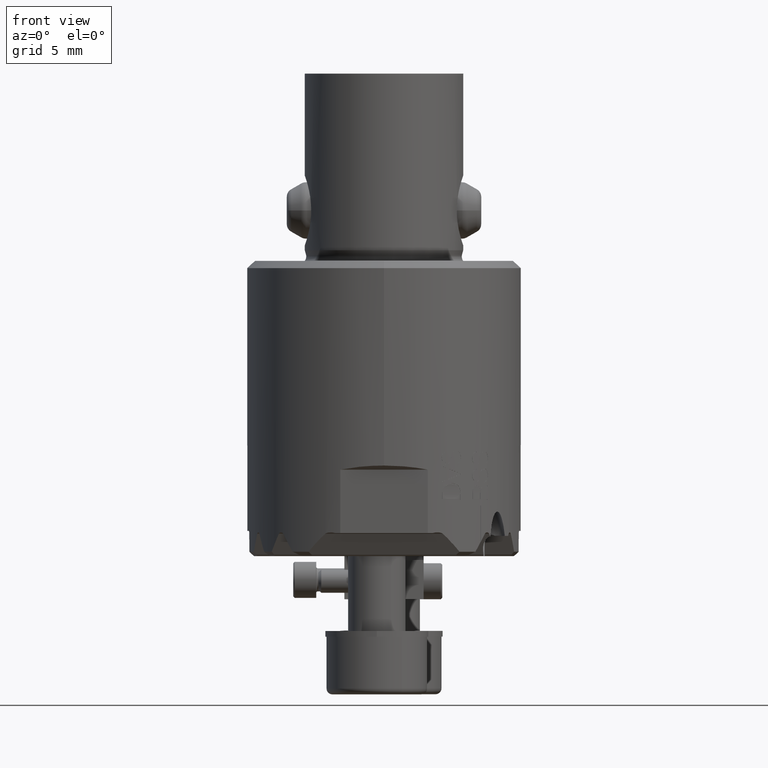
[diagram: clean part render]
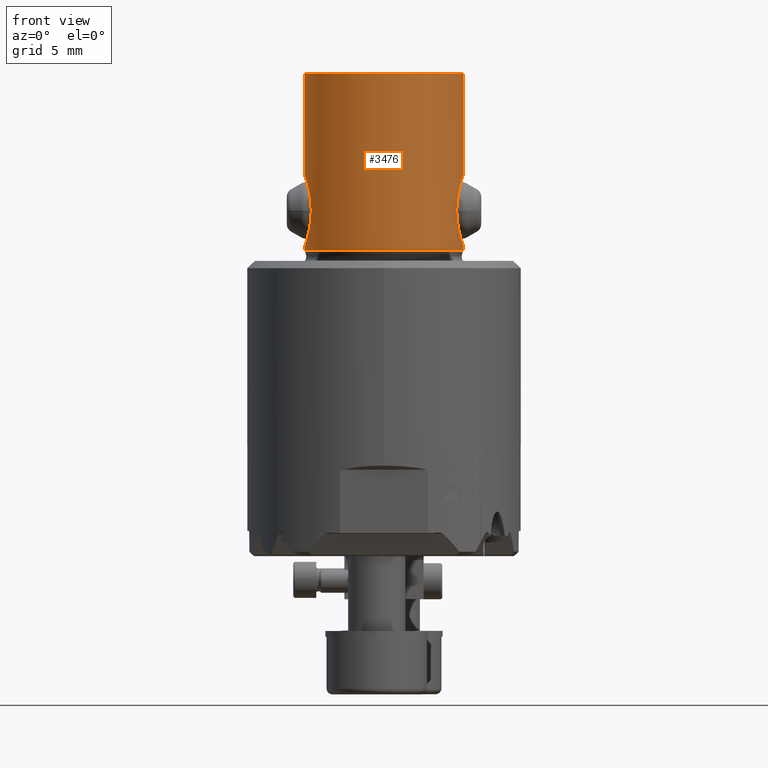
[diagram: same view with one face highlighted and labeled with its STEP entity id]
A machine part, front view. The second image highlights one B-rep face of the part: STEP entity #3476.
In plain terms, the highlighted cylindrical surface (partial cylindrical patch) has radius 5.5 mm, axis along (0, 0, 1).
Its self-contained STEP definition (entity closure, byte-faithful):
#3428=EDGE_CURVE('NONE',#6424,#5322,#10071,.F.);
#3468=VERTEX_POINT('NONE',#10115);
#3476=ADVANCED_FACE('NONE',(#10125),#10126,.T.);
#3516=EDGE_CURVE('NONE',#3468,#5322,#10171,.T.);
#3688=VERTEX_POINT('NONE',#10354);
#5132=EDGE_CURVE('NONE',#8668,#3468,#11953,.T.);
#5322=VERTEX_POINT('NONE',#12164);
#5894=VERTEX_POINT('NONE',#12803);
#5998=VERTEX_POINT('NONE',#12925);
#6054=EDGE_CURVE('NONE',#5998,#8668,#12988,.T.);
#6424=VERTEX_POINT('NONE',#13397);
#7584=EDGE_CURVE('NONE',#3688,#5894,#14683,.T.);
#8178=EDGE_CURVE('NONE',#3688,#6424,#15321,.T.);
#8658=EDGE_CURVE('NONE',#5998,#8738,#15852,.T.);
#8668=VERTEX_POINT('NONE',#15864);
#8738=VERTEX_POINT('NONE',#15941);
#9420=EDGE_CURVE('NONE',#8738,#5894,#16706,.T.);
#10071=CIRCLE('',#17415,5.5);
#10115=CARTESIAN_POINT('',(5.50000000000001,-7.14299198483482E-015,5.92487113059642));
#10125=FACE_OUTER_BOUND('',#17536,.T.);
#10126=CYLINDRICAL_SURFACE('',#17537,5.5);
#10171=LINE('',#17623,#17624);
#10354=CARTESIAN_POINT('',(-5.50000000000003,1.70311616208648E-014,5.92487113059657));
#11953=B_SPLINE_CURVE_WITH_KNOTS('',3,(#26240,#26241,#26242,#26243,#26244,#26245,#26246,#26247,#26248,#26249,#26250,#26251,#26252,#26253,#26254,#26255,#26256,#26257,#26258,#26259,#26260,#26261,#26262,#26263,#26264,#26265,#26266,#26267,#26268,#26269,#26270,#26271,#26272,#26273,#26274,#26275,#26276,#26277,#26278,#26279,#26280,#26281,#26282,#26283,#26284,#26285,#26286),.UNSPECIFIED.,.F.,.F.,(4,2,2,2,2,2,2,2,2,2,2,3,2,2,2,2,2,2,2,2,2,2,4),(-4.87261984377668,-4.41583832098615,-3.95905679819562,-3.50227527540509,-3.04549375261456,-2.58871222982403,-2.1319307070335,-1.67514918424297,-1.25636188818222,-0.837574592121483,-0.418787296060742,0.0,0.431466070727297,0.862932141454594,1.29439821218189,1.72586428290919,2.16962801802804,2.6133917531469,3.05715548826575,3.50091922338461,3.94468295850346,4.38844669362232,4.83221042874117),.UNSPECIFIED.);
#12164=CARTESIAN_POINT('',(5.50000000000003,-7.14301131085603E-015,13.0));
#12803=CARTESIAN_POINT('',(-5.5,7.81656698934652E-015,1.07512886940359));
#12925=CARTESIAN_POINT('',(5.5,-7.14301131085606E-015,0.739031329550557));
#12988=LINE('',#30768,#30769);
#13397=CARTESIAN_POINT('',(-5.49999999999997,7.81656705038712E-015,13.0));
#14683=B_SPLINE_CURVE_WITH_KNOTS('',3,(#36778,#36779,#36780,#36781,#36782,#36783,#36784,#36785,#36786,#36787,#36788,#36789,#36790,#36791,#36792,#36793,#36794,#36795,#36796,#36797,#36798,#36799,#36800,#36801,#36802,#36803,#36804,#36805,#36806,#36807,#36808,#36809,#36810,#36811,#36812,#36813,#36814,#36815,#36816,#36817,#36818,#36819,#36820,#36821,#36822,#36823),.UNSPECIFIED.,.F.,.F.,(4,2,2,2,2,2,2,2,2,2,2,2,2,2,2,2,2,2,2,2,2,2,4),(2.16962801802804,2.6133917531469,3.05715548826575,3.50091922338461,3.94468295850346,4.38844669362232,4.83221042874117,5.27597416386002,5.70744023458732,6.13890630531462,6.57037237604191,7.00183844676921,7.42062574282995,7.83941303889069,8.25820033495143,8.67698763101217,9.1337691538027,9.59055067659324,10.0473321993838,10.5041137221743,10.9478774572932,11.391641192412,11.8354049275309),.UNSPECIFIED.);
#15321=LINE('',#38807,#38808);
#15852=CIRCLE('',#40818,5.5);
#15864=CARTESIAN_POINT('',(5.5,-7.14316573613187E-015,1.07512886940356));
#15941=CARTESIAN_POINT('',(-5.5,7.8165670503871E-015,0.739031329550583));
#16706=LINE('',#44502,#44503);
#17415=AXIS2_PLACEMENT_3D('',#45923,#45924,#45925);
#17536=EDGE_LOOP('',(#46001,#46002,#46003,#46004,#46005,#46006,#46007,#46008));
#17537=AXIS2_PLACEMENT_3D('',#46009,#46010,#46011);
#17623=CARTESIAN_POINT('',(5.50000000000003,-7.14301131085603E-015,13.0));
#17624=VECTOR('',#46074,1000.0);
#26240=CARTESIAN_POINT('',(5.34553224206159,1.29432802993676,1.55573698844352));
#26241=CARTESIAN_POINT('',(5.37460026169694,1.17427806424542,1.45565661254593));
#26242=CARTESIAN_POINT('',(5.40226756328689,1.04201071475581,1.36728195080594));
#26243=CARTESIAN_POINT('',(5.44895428315725,0.761037936627461,1.22326953335619));
#26244=CARTESIAN_POINT('',(5.46797738072453,0.612003939838679,1.16748850647717));
#26245=CARTESIAN_POINT('',(5.49351395114518,0.30761977742026,1.09340419541638));
#26246=CARTESIAN_POINT('',(5.5,0.152260507596838,1.07512886940356));
#26247=CARTESIAN_POINT('',(5.5,-0.152260507596851,1.07512886940356));
#26248=CARTESIAN_POINT('',(5.49351395114518,-0.307619777420273,1.09340419541638));
#26249=CARTESIAN_POINT('',(5.46797738072453,-0.612003939838691,1.16748850647717));
#26250=CARTESIAN_POINT('',(5.44895428315725,-0.761037936627473,1.22326953335619));
#26251=CARTESIAN_POINT('',(5.40226756328689,-1.04201071475582,1.36728195080594));
#26252=CARTESIAN_POINT('',(5.37460026169694,-1.17427806424544,1.45565661254593));
#26253=CARTESIAN_POINT('',(5.31646422242624,-1.41437799562811,1.65581736434111));
#26254=CARTESIAN_POINT('',(5.2860570189835,-1.52221633862693,1.76761441124392));
#26255=CARTESIAN_POINT('',(5.23105795786008,-1.70119157488657,1.99149619286507));
#26256=CARTESIAN_POINT('',(5.20432090428265,-1.78058630314661,2.11019303384377));
#26257=CARTESIAN_POINT('',(5.15468449055798,-1.9195498064665,2.36465726576365));
#26258=CARTESIAN_POINT('',(5.13182744926574,-1.97913416666208,2.50042439844721));
#26259=CARTESIAN_POINT('',(5.09406766980252,-2.07439133761427,2.78094539839874));
#26260=CARTESIAN_POINT('',(5.07917655996017,-2.11012030075314,2.92587767783913));
#26261=CARTESIAN_POINT('',(5.05951607510312,-2.1568354819699,3.21560583215867));
#26262=CARTESIAN_POINT('',(5.05475950762827,-2.16781141247149,3.36040423464641));
#26263=CARTESIAN_POINT('',(5.05475950762827,-2.16781141247149,3.49999999999999));
#26264=CARTESIAN_POINT('',(5.05475950762827,-2.16781141247149,3.64382202357576));
#26265=CARTESIAN_POINT('',(5.05981097811349,-2.15616165072349,3.79288699580881));
#26266=CARTESIAN_POINT('',(5.08061095778048,-2.10668281770845,4.09074831455941));
#26267=CARTESIAN_POINT('',(5.09634427563651,-2.06886604197187,4.23954776403061));
#26268=CARTESIAN_POINT('',(5.1360873280236,-1.96813079682075,4.52699139067209));
#26269=CARTESIAN_POINT('',(5.16008387450618,-1.90515072959765,4.66582723372041));
#26270=CARTESIAN_POINT('',(5.21195645157068,-1.75828747436267,4.92532903375663));
#26271=CARTESIAN_POINT('',(5.23978642478512,-1.67438677204274,5.04599428284546));
#26272=CARTESIAN_POINT('',(5.29499785124052,-1.49078739604701,5.26589676647201));
#26273=CARTESIAN_POINT('',(5.32443988401013,-1.38389125270576,5.37254352282095));
#26274=CARTESIAN_POINT('',(5.38044925284361,-1.14698775816601,5.56332496319647));
#26275=CARTESIAN_POINT('',(5.40696010206478,-1.01697367267777,5.64746786390138));
#26276=CARTESIAN_POINT('',(5.45155613660193,-0.741612434003718,5.78443222449123));
#26277=CARTESIAN_POINT('',(5.46964487315285,-0.595953439758043,5.83738426796736));
#26278=CARTESIAN_POINT('',(5.49387910117327,-0.299111956946089,5.90761685869199));
#26279=CARTESIAN_POINT('',(5.50000000000001,-0.147921245039626,5.92487113059642));
#26280=CARTESIAN_POINT('',(5.50000000000001,0.147921245039611,5.92487113059642));
#26281=CARTESIAN_POINT('',(5.49387910117327,0.299111956946074,5.90761685869199));
#26282=CARTESIAN_POINT('',(5.46964487315285,0.595953439758028,5.83738426796736));
#26283=CARTESIAN_POINT('',(5.45155613660193,0.741612434003704,5.78443222449123));
#26284=CARTESIAN_POINT('',(5.40696010206478,1.01697367267776,5.64746786390138));
#26285=CARTESIAN_POINT('',(5.38044925284361,1.146987758166,5.56332496319647));
#26286=CARTESIAN_POINT('',(5.35244456842687,1.26543950543588,5.46793424300871));
#30768=CARTESIAN_POINT('',(5.50000000000003,-7.14301131085603E-015,13.0));
#30769=VECTOR('',#49017,1000.0);
#36778=CARTESIAN_POINT('',(-5.35244456842685,1.26543950543589,5.46793424300874));
#36779=CARTESIAN_POINT('',(-5.38044925284358,1.14698775816601,5.5633249631965));
#36780=CARTESIAN_POINT('',(-5.40696010206476,1.01697367267777,5.6474678639014));
#36781=CARTESIAN_POINT('',(-5.45155613660191,0.741612434003717,5.78443222449125));
#36782=CARTESIAN_POINT('',(-5.46964487315282,0.595953439758041,5.83738426796739));
#36783=CARTESIAN_POINT('',(-5.49387910117324,0.299111956946088,5.90761685869201));
#36784=CARTESIAN_POINT('',(-5.49999999999999,0.147921245039625,5.92487113059645));
#36785=CARTESIAN_POINT('',(-5.49999999999999,-0.147921245039611,5.92487113059645));
#36786=CARTESIAN_POINT('',(-5.49387910117324,-0.299111956946074,5.90761685869201));
#36787=CARTESIAN_POINT('',(-5.46964487315282,-0.595953439758027,5.83738426796739));
#36788=CARTESIAN_POINT('',(-5.45155613660191,-0.741612434003703,5.78443222449125));
#36789=CARTESIAN_POINT('',(-5.40696010206476,-1.01697367267776,5.6474678639014));
#36790=CARTESIAN_POINT('',(-5.38044925284358,-1.146987758166,5.5633249631965));
#36791=CARTESIAN_POINT('',(-5.32443988401011,-1.38389125270575,5.37254352282098));
#36792=CARTESIAN_POINT('',(-5.2949978512405,-1.49078739604699,5.26589676647203));
#36793=CARTESIAN_POINT('',(-5.2397864247851,-1.67438677204273,5.04599428284548));
#36794=CARTESIAN_POINT('',(-5.21195645157066,-1.75828747436266,4.92532903375665));
#36795=CARTESIAN_POINT('',(-5.16008387450616,-1.90515072959763,4.66582723372043));
#36796=CARTESIAN_POINT('',(-5.13608732802359,-1.96813079682074,4.52699139067212));
#36797=CARTESIAN_POINT('',(-5.0963442756365,-2.06886604197186,4.23954776403063));
#36798=CARTESIAN_POINT('',(-5.08061095778047,-2.10668281770843,4.09074831455943));
#36799=CARTESIAN_POINT('',(-5.05981097811348,-2.15616165072348,3.79288699580884));
#36800=CARTESIAN_POINT('',(-5.05475950762827,-2.16781141247148,3.64382202357578));
#36801=CARTESIAN_POINT('',(-5.05475950762827,-2.16781141247148,3.36040423464644));
#36802=CARTESIAN_POINT('',(-5.05951607510312,-2.15683548196989,3.2156058321587));
#36803=CARTESIAN_POINT('',(-5.07917655996016,-2.11012030075312,2.92587767783915));
#36804=CARTESIAN_POINT('',(-5.09406766980252,-2.07439133761426,2.78094539839876));
#36805=CARTESIAN_POINT('',(-5.13182744926574,-1.97913416666207,2.50042439844723));
#36806=CARTESIAN_POINT('',(-5.15468449055798,-1.91954980646649,2.36465726576368));
#36807=CARTESIAN_POINT('',(-5.20432090428265,-1.78058630314659,2.1101930338438));
#36808=CARTESIAN_POINT('',(-5.23105795786008,-1.70119157488655,1.9914961928651));
#36809=CARTESIAN_POINT('',(-5.2860570189835,-1.52221633862691,1.76761441124395));
#36810=CARTESIAN_POINT('',(-5.31646422242624,-1.4143779956281,1.65581736434114));
#36811=CARTESIAN_POINT('',(-5.37460026169694,-1.17427806424542,1.45565661254596));
#36812=CARTESIAN_POINT('',(-5.40226756328689,-1.04201071475581,1.36728195080597));
#36813=CARTESIAN_POINT('',(-5.44895428315725,-0.761037936627457,1.22326953335622));
#36814=CARTESIAN_POINT('',(-5.46797738072453,-0.612003939838676,1.1674885064772));
#36815=CARTESIAN_POINT('',(-5.49351395114518,-0.307619777420259,1.09340419541641));
#36816=CARTESIAN_POINT('',(-5.5,-0.152260507596837,1.07512886940359));
#36817=CARTESIAN_POINT('',(-5.5,0.147921245039625,1.07512886940359));
#36818=CARTESIAN_POINT('',(-5.49387910117325,0.299111956946089,1.09238314130802));
#36819=CARTESIAN_POINT('',(-5.46964487315283,0.595953439758042,1.16261573203265));
#36820=CARTESIAN_POINT('',(-5.45155613660192,0.741612434003718,1.21556777550878));
#36821=CARTESIAN_POINT('',(-5.40696010206477,1.01697367267777,1.35253213609863));
#36822=CARTESIAN_POINT('',(-5.38044925284359,1.14698775816601,1.43667503680354));
#36823=CARTESIAN_POINT('',(-5.35244456842686,1.26543950543589,1.5320657569913));
#38807=CARTESIAN_POINT('',(-5.49999999999997,7.81656705038714E-015,13.0));
#38808=VECTOR('',#51431,1000.0);
#40818=AXIS2_PLACEMENT_3D('',#51994,#51995,#51996);
#44502=CARTESIAN_POINT('',(-5.49999999999997,7.81656705038714E-015,13.0));
#44503=VECTOR('',#53005,1000.0);
#45923=CARTESIAN_POINT('',(3.09563843742949E-014,3.35112459571419E-029,13.0));
#45924=DIRECTION('',(3.93082605601228E-045,3.02667073692153E-030,-1.0));
#45925=DIRECTION('',(1.0,-1.29872932924656E-015,0.0));
#46001=ORIENTED_EDGE('',*,*,#9420,.F.);
#46002=ORIENTED_EDGE('',*,*,#8658,.F.);
#46003=ORIENTED_EDGE('',*,*,#6054,.T.);
#46004=ORIENTED_EDGE('',*,*,#5132,.T.);
#46005=ORIENTED_EDGE('',*,*,#3516,.T.);
#46006=ORIENTED_EDGE('',*,*,#3428,.F.);
#46007=ORIENTED_EDGE('',*,*,#8178,.F.);
#46008=ORIENTED_EDGE('',*,*,#7584,.T.);
#46009=CARTESIAN_POINT('',(3.09563843742949E-014,3.35112459571419E-029,13.0));
#46010=DIRECTION('',(2.52323414687536E-015,2.39340259900953E-030,1.0));
#46011=DIRECTION('',(1.0,-1.29872932924656E-015,-2.52323414687536E-015));
#46074=DIRECTION('',(2.38126033648423E-015,2.57778815054938E-030,1.0));
#49017=DIRECTION('',(2.38126033648423E-015,2.57778815054938E-030,1.0));
#51431=DIRECTION('',(2.38126033648423E-015,2.57778815054938E-030,1.0));
#51994=CARTESIAN_POINT('',(1.90895512480073E-017,4.16581167491386E-030,0.739031329550572));
#51995=DIRECTION('',(-2.52323414687536E-015,-2.39340259900953E-030,-1.0));
#51996=DIRECTION('',(1.0,-1.29872932924656E-015,-2.52323414687536E-015));
#53005=DIRECTION('',(2.38126033648423E-015,2.57778815054938E-030,1.0));